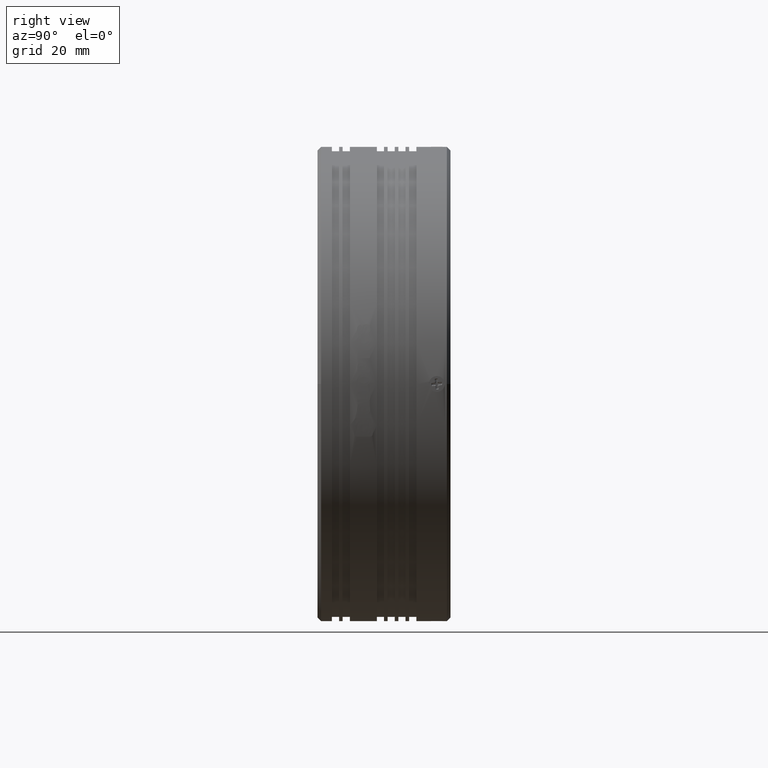
[diagram: clean part render]
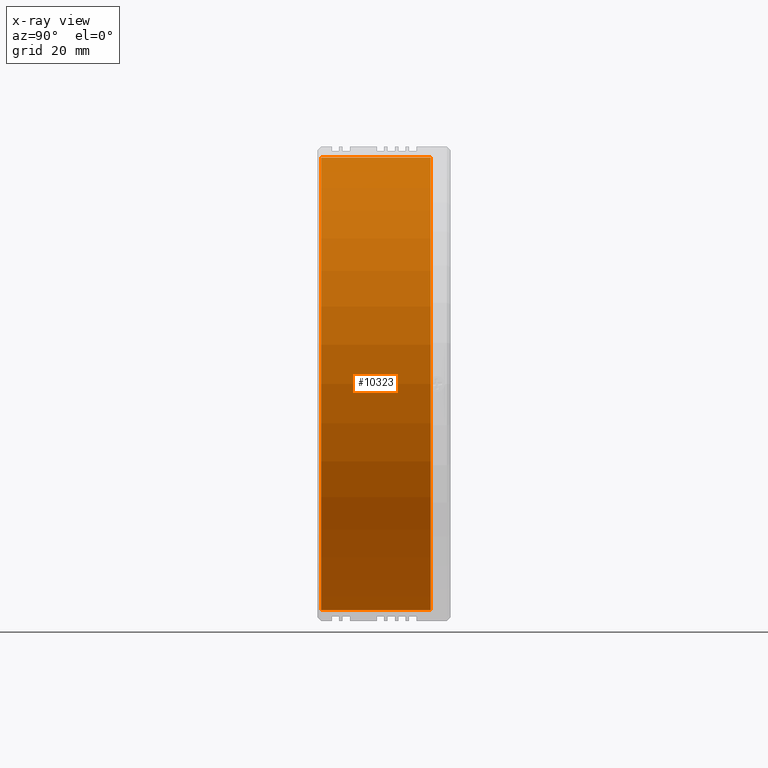
[diagram: x-ray — body ghosted, one internal face saturated and labeled with its STEP entity id]
A machine part, right view, then the same camera in x-ray: the body is ghosted and one INTERNAL B-rep face — a face not visible from any outside direction — is saturated and labeled: STEP entity #10323.
In plain terms, the highlighted cylindrical surface (partial cylindrical patch) has radius 63 mm, axis along (-0, -1, -0).
Its self-contained STEP definition (entity closure, byte-faithful):
#204 = VECTOR ( 'NONE', #60616, 1000.000000000000000 ) ;
#1909 = AXIS2_PLACEMENT_3D ( 'NONE', #46103, #12705, #12957 ) ;
#2776 = EDGE_LOOP ( 'NONE', ( #56051, #65399, #60231, #45488 ) ) ;
#4781 = EDGE_CURVE ( 'NONE', #63678, #5956, #29703, .T. ) ;
#5956 = VERTEX_POINT ( 'NONE', #39623 ) ;
#7877 = LINE ( 'NONE', #65688, #65128 ) ;
#9075 = CARTESIAN_POINT ( 'NONE',  ( -22.28931969498007600, 25.64734950584006200, -63.00000000000000000 ) ) ;
#9412 = EDGE_CURVE ( 'NONE', #63678, #57121, #58711, .T. ) ;
#9903 = DIRECTION ( 'NONE',  ( -0.0000000000000000000, -1.000000000000000000, -0.0000000000000000000 ) ) ;
#10323 = ADVANCED_FACE ( 'NONE', ( #54983 ), #48001, .F. ) ;
#12705 = DIRECTION ( 'NONE',  ( -0.0000000000000000000, -1.000000000000000000, -0.0000000000000000000 ) ) ;
#12957 = DIRECTION ( 'NONE',  ( 0.0000000000000000000, 0.0000000000000000000, -1.000000000000000000 ) ) ;
#18425 = CARTESIAN_POINT ( 'NONE',  ( -22.28931969498006900, 25.64734950584006200, 63.00000000000000000 ) ) ;
#20692 = AXIS2_PLACEMENT_3D ( 'NONE', #25114, #63864, #30677 ) ;
#21871 = CARTESIAN_POINT ( 'NONE',  ( -22.28931969498007600, -31.13173980934526600, -63.00000000000000000 ) ) ;
#25114 = CARTESIAN_POINT ( 'NONE',  ( -22.28931969498007600, -4.852650494159928700, 0.0000000000000000000 ) ) ;
#26772 = VERTEX_POINT ( 'NONE', #61194 ) ;
#29703 = LINE ( 'NONE', #21871, #204 ) ;
#30677 = DIRECTION ( 'NONE',  ( 0.0000000000000000000, 0.0000000000000000000, -1.000000000000000000 ) ) ;
#39623 = CARTESIAN_POINT ( 'NONE',  ( -22.28931969498007600, -4.852650494159928700, -63.00000000000000000 ) ) ;
#43104 = CARTESIAN_POINT ( 'NONE',  ( -22.28931969498007600, 25.64734950584006200, 0.0000000000000000000 ) ) ;
#45488 = ORIENTED_EDGE ( 'NONE', *, *, #49726, .F. ) ;
#46103 = CARTESIAN_POINT ( 'NONE',  ( -22.28931969498007600, -31.13173980934526600, 0.0000000000000000000 ) ) ;
#48001 = CYLINDRICAL_SURFACE ( 'NONE', #1909, 63.00000000000000000 ) ;
#48647 = DIRECTION ( 'NONE',  ( 0.0000000000000000000, 0.0000000000000000000, -1.000000000000000000 ) ) ;
#49180 = DIRECTION ( 'NONE',  ( -0.0000000000000000000, -1.000000000000000000, -0.0000000000000000000 ) ) ;
#49726 = EDGE_CURVE ( 'NONE', #26772, #5956, #53190, .T. ) ;
#53190 = CIRCLE ( 'NONE', #20692, 63.00000000000000000 ) ;
#54983 = FACE_OUTER_BOUND ( 'NONE', #2776, .T. ) ;
#56051 = ORIENTED_EDGE ( 'NONE', *, *, #66762, .F. ) ;
#57121 = VERTEX_POINT ( 'NONE', #18425 ) ;
#57539 = AXIS2_PLACEMENT_3D ( 'NONE', #43104, #9903, #48647 ) ;
#58711 = CIRCLE ( 'NONE', #57539, 63.00000000000000000 ) ;
#60231 = ORIENTED_EDGE ( 'NONE', *, *, #4781, .T. ) ;
#60616 = DIRECTION ( 'NONE',  ( -0.0000000000000000000, -1.000000000000000000, -0.0000000000000000000 ) ) ;
#61194 = CARTESIAN_POINT ( 'NONE',  ( -22.28931969498006900, -4.852650494159928700, 63.00000000000000000 ) ) ;
#63678 = VERTEX_POINT ( 'NONE', #9075 ) ;
#63864 = DIRECTION ( 'NONE',  ( 0.0000000000000000000, 1.000000000000000000, 0.0000000000000000000 ) ) ;
#65128 = VECTOR ( 'NONE', #49180, 1000.000000000000000 ) ;
#65399 = ORIENTED_EDGE ( 'NONE', *, *, #9412, .F. ) ;
#65688 = CARTESIAN_POINT ( 'NONE',  ( -22.28931969498006900, -31.13173980934526600, 63.00000000000000000 ) ) ;
#66762 = EDGE_CURVE ( 'NONE', #57121, #26772, #7877, .T. ) ;